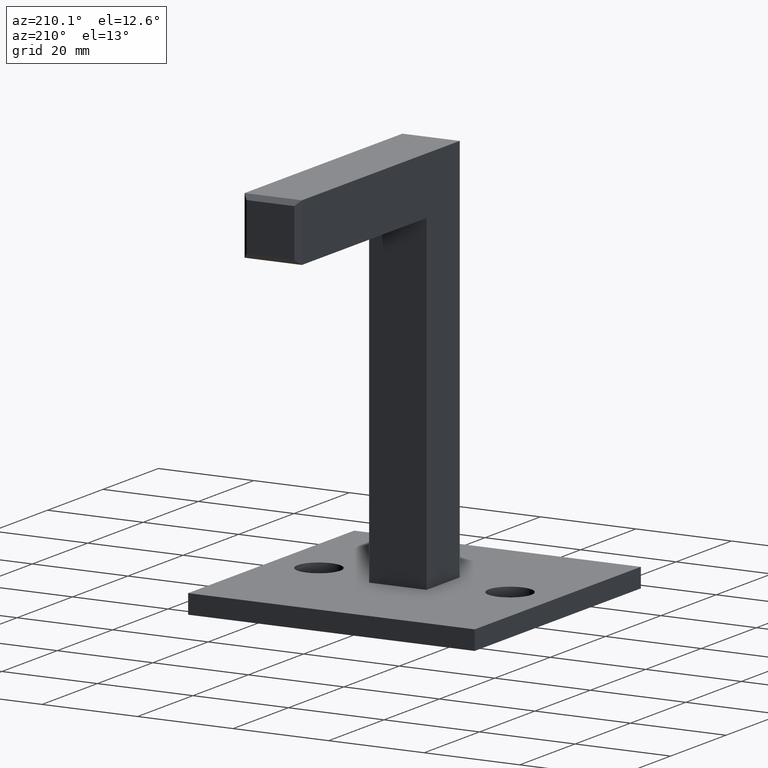
[diagram: clean part render]
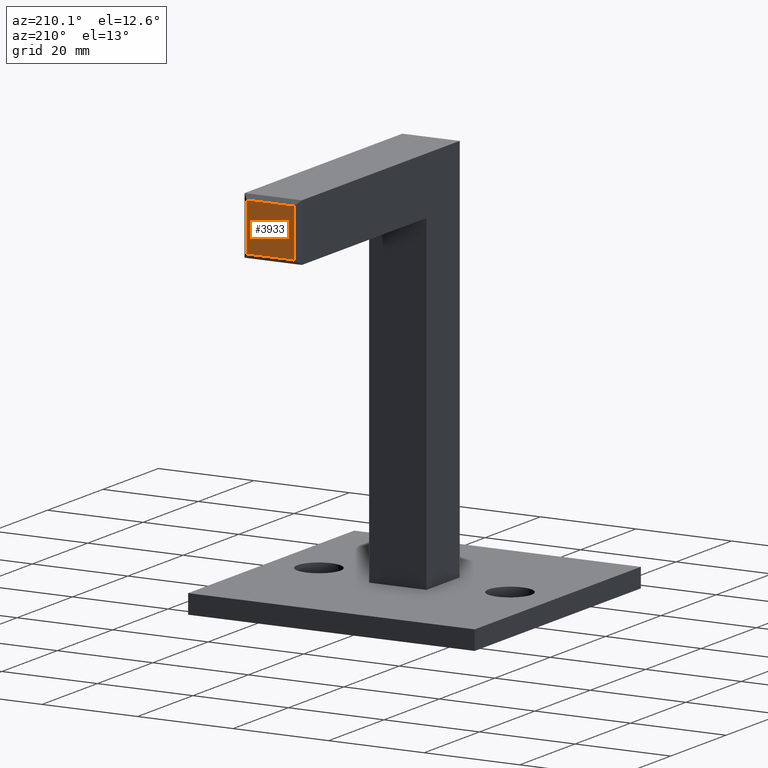
[diagram: same view with one face highlighted and labeled with its STEP entity id]
A machine part, auxiliary view. The second image highlights one B-rep face of the part: STEP entity #3933.
In plain terms, the highlighted planar face has unit normal (-0, -1, 0).
Its self-contained STEP definition (entity closure, byte-faithful):
#81 = AXIS2_PLACEMENT_3D ( 'NONE', #5389, #891, #1722 ) ;
#298 = FACE_OUTER_BOUND ( 'NONE', #5405, .T. ) ;
#310 = EDGE_CURVE ( 'NONE', #1200, #5217, #7389, .T. ) ;
#891 = DIRECTION ( 'NONE',  ( -0.000000000000000000, -1.000000000000000000, 1.608122649676636601E-16 ) ) ;
#986 = CARTESIAN_POINT ( 'NONE',  ( -5.000000000000000000, 51.99999999999997158, 74.00000000000001421 ) ) ;
#1200 = VERTEX_POINT ( 'NONE', #8300 ) ;
#1722 = DIRECTION ( 'NONE',  ( -1.000000000000000000, 0.000000000000000000, -0.000000000000000000 ) ) ;
#1853 = EDGE_CURVE ( 'NONE', #9116, #3952, #9260, .T. ) ;
#1937 = DIRECTION ( 'NONE',  ( 1.445602896647339163E-16, -1.608122649676636601E-16, -1.000000000000000000 ) ) ;
#2381 = DIRECTION ( 'NONE',  ( 1.000000000000000000, 0.000000000000000000, 0.000000000000000000 ) ) ;
#2399 = CARTESIAN_POINT ( 'NONE',  ( 4.999999999999999112, 51.99999999999997158, 74.00000000000001421 ) ) ;
#2626 = VECTOR ( 'NONE', #8383, 1000.000000000000000 ) ;
#3872 = ORIENTED_EDGE ( 'NONE', *, *, #7186, .T. ) ;
#3933 = ADVANCED_FACE ( 'NONE', ( #298 ), #7496, .F. ) ;
#3952 = VERTEX_POINT ( 'NONE', #986 ) ;
#4066 = VECTOR ( 'NONE', #2381, 1000.000000000000000 ) ;
#4174 = EDGE_CURVE ( 'NONE', #5217, #9116, #5510, .T. ) ;
#4832 = ORIENTED_EDGE ( 'NONE', *, *, #1853, .T. ) ;
#5103 = DIRECTION ( 'NONE',  ( -1.000000000000000000, 0.000000000000000000, 0.000000000000000000 ) ) ;
#5217 = VERTEX_POINT ( 'NONE', #8105 ) ;
#5320 = VECTOR ( 'NONE', #5103, 1000.000000000000000 ) ;
#5389 = CARTESIAN_POINT ( 'NONE',  ( 0.000000000000000000, 51.99999999999997158, 79.00000000000000000 ) ) ;
#5405 = EDGE_LOOP ( 'NONE', ( #5432, #4832, #3872, #8027 ) ) ;
#5432 = ORIENTED_EDGE ( 'NONE', *, *, #4174, .T. ) ;
#5510 = LINE ( 'NONE', #6330, #8401 ) ;
#6330 = CARTESIAN_POINT ( 'NONE',  ( 4.999999999999998224, 51.99999999999997158, 79.00000000000000000 ) ) ;
#7186 = EDGE_CURVE ( 'NONE', #3952, #1200, #8723, .T. ) ;
#7389 = LINE ( 'NONE', #8880, #4066 ) ;
#7496 = PLANE ( 'NONE',  #81 ) ;
#8027 = ORIENTED_EDGE ( 'NONE', *, *, #310, .T. ) ;
#8105 = CARTESIAN_POINT ( 'NONE',  ( 4.999999999999997335, 51.99999999999997158, 84.00000000000000000 ) ) ;
#8225 = CARTESIAN_POINT ( 'NONE',  ( -5.000000000000000888, 51.99999999999997158, 79.00000000000000000 ) ) ;
#8300 = CARTESIAN_POINT ( 'NONE',  ( -5.000000000000001776, 51.99999999999997158, 84.00000000000000000 ) ) ;
#8383 = DIRECTION ( 'NONE',  ( -1.445602896647339163E-16, 1.608122649676636601E-16, 1.000000000000000000 ) ) ;
#8401 = VECTOR ( 'NONE', #1937, 1000.000000000000000 ) ;
#8723 = LINE ( 'NONE', #8225, #2626 ) ;
#8880 = CARTESIAN_POINT ( 'NONE',  ( 0.000000000000000000, 51.99999999999997158, 84.00000000000000000 ) ) ;
#9116 = VERTEX_POINT ( 'NONE', #2399 ) ;
#9260 = LINE ( 'NONE', #9524, #5320 ) ;
#9524 = CARTESIAN_POINT ( 'NONE',  ( 0.000000000000000000, 51.99999999999997158, 74.00000000000001421 ) ) ;